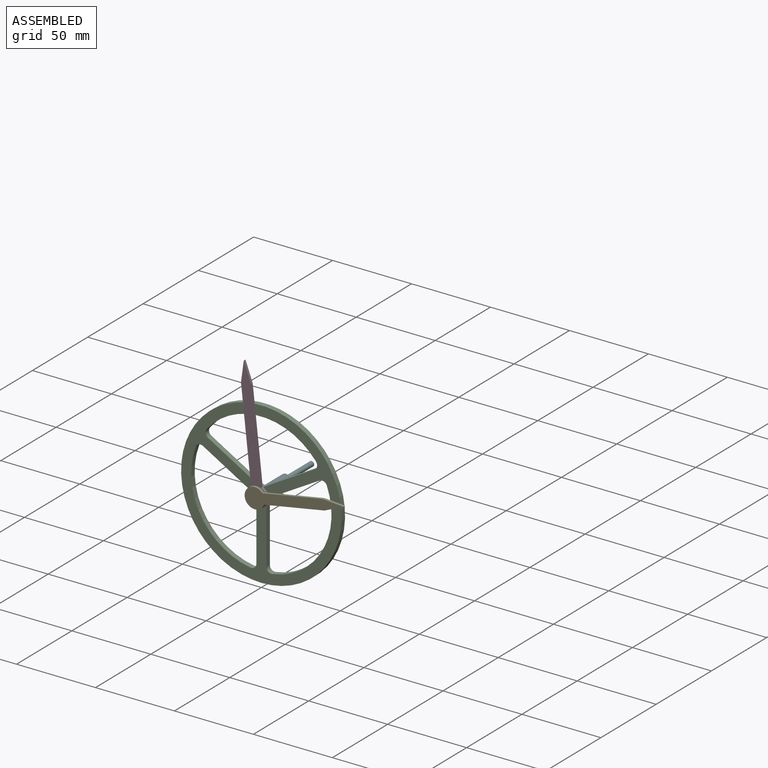
[diagram: assembled view]
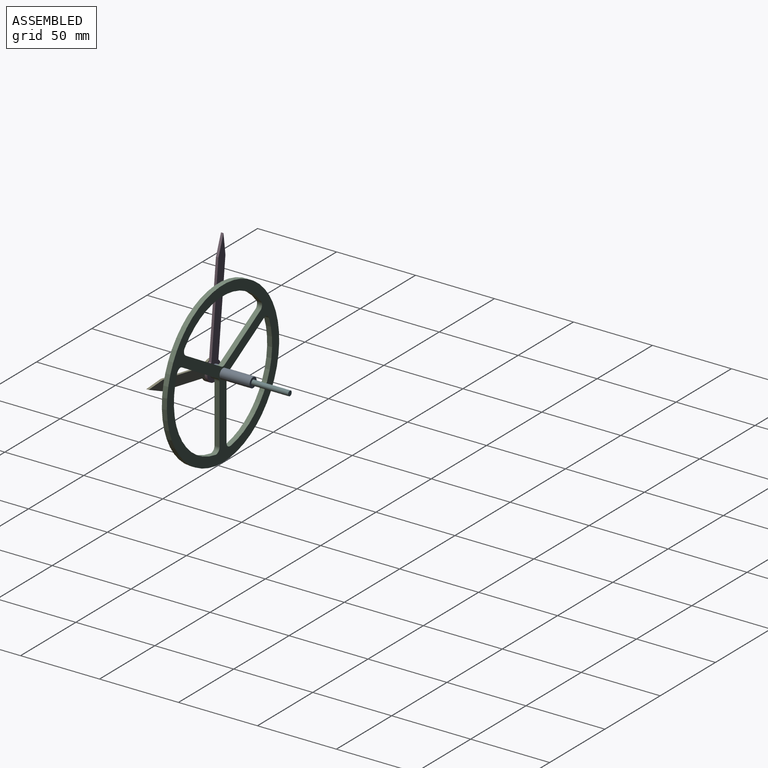
[diagram: assembled view, second angle]
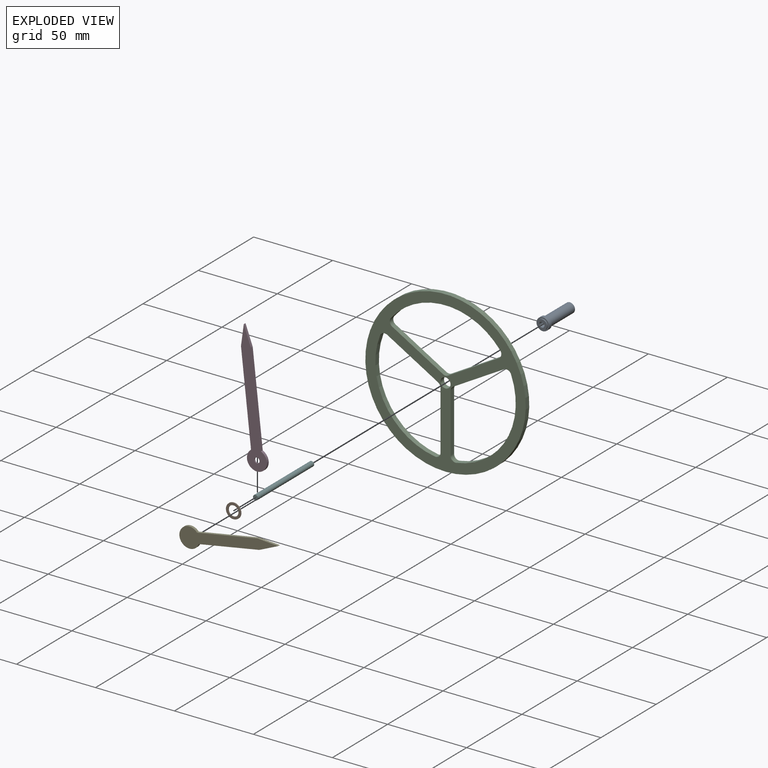
[diagram: exploded view]
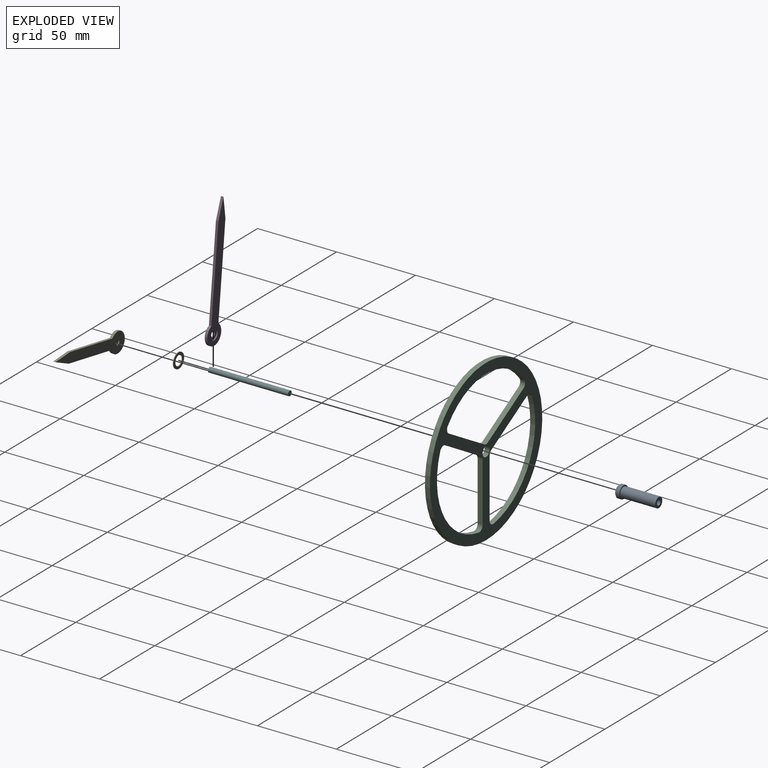
[diagram: exploded view, second angle]
ASSEMBLY  parts=6 mates=6
PART A: 8 faces, bbox 7.9x25.4x7.9 mm
  f0: plane 6.35x6.35mm, normal (0,-1,0), area 23.1mm2, adj f3,f6
  f1: cylinder r=3.97mm len=7.94mm, axis (0,-1,0), area 59.4mm2, adj f5,f7
  f2: cylinder r=3.17mm len=22.23mm, axis (0,-1,0), area 443.4mm2, adj f4,f5
  f3: cylinder r=1.65mm len=25.4mm, axis (0,-1,0), area 263.5mm2, adj f0,f4
  f4: plane 6.35x6.35mm, normal (0,1,0), area 23.1mm2, adj f2,f3
  f5: plane 7.94x7.94mm, normal (0,1,0), area 17.8mm2, adj f1,f2
  f6: cylinder r=3.17mm len=6.35mm, axis (0,-1,0), area 15.8mm2, adj f0,f7
  f7: plane 7.94x7.94mm, normal (0,-1,0), area 17.8mm2, adj f1,f6
PART B: 4 faces, bbox 9.5x0.5x9.5 mm
  f0: cylinder r=4.74mm len=9.47mm, axis (0,-1,0), area 15.1mm2, adj f1,f2
  f1: plane 9.47x9.47mm, normal (0,1,0), area 38.1mm2, adj f0,f3
  f2: plane 9.47x9.47mm, normal (0,-1,0), area 38.1mm2, adj f0,f3
  f3: cylinder r=3.21mm len=6.43mm, axis (0,1,0), area 10.3mm2, adj f1,f2
PART C: 22 faces, bbox 101.6x3.2x101.6 mm
  f0: cylinder r=3.17mm len=3.18mm, axis (0,1,0), area 10.6mm2, adj f1,f19,f20,f21
  f1: plane 32.14x18.56mm, normal (0.5,0,-0.87), area 117.8mm2, adj f0,f2,f20,f21
  f2: cylinder r=3.17mm len=4.55mm, axis (0,1,0), area 17.4mm2, adj f1,f3,f20,f21
  f3: cylinder r=44.45mm len=59.96mm, axis (0,1,0), area 252mm2, adj f2,f4,f20,f21
  f4: cylinder r=3.17mm len=3.66mm, axis (0,1,0), area 17.4mm2, adj f3,f19,f20,f21
  f5: cylinder r=3.17mm len=3.66mm, axis (0,1,0), area 17.4mm2, adj f6,f15,f20,f21
  f6: cylinder r=44.45mm len=59.96mm, axis (0,1,0), area 252mm2, adj f5,f7,f20,f21
  f7: cylinder r=3.17mm len=4.55mm, axis (0,1,0), area 17.4mm2, adj f6,f8,f20,f21
  f8: plane 32.14x18.56mm, normal (-0.5,0,-0.87), area 117.8mm2, adj f7,f9,f20,f21
  f9: cylinder r=3.17mm len=3.18mm, axis (0,1,0), area 10.6mm2, adj f8,f15,f20,f21
  f10: plane 32.14x18.56mm, normal (0.5,0,0.87), area 117.8mm2, adj f11,f18,f20,f21
  f11: cylinder r=3.17mm len=4.74mm, axis (0,1,0), area 17.4mm2, adj f10,f12,f20,f21
  f12: cylinder r=44.45mm len=69.23mm, axis (0,1,0), area 252mm2, adj f11,f13,f20,f21
  f13: cylinder r=3.17mm len=4.74mm, axis (0,1,0), area 17.4mm2, adj f12,f14,f20,f21
  f14: plane 32.14x18.56mm, normal (-0.5,0,0.87), area 117.8mm2, adj f13,f18,f20,f21
  f15: plane 37.12x3.18mm, normal (-1,0,0), area 117.8mm2, adj f5,f9,f20,f21
  f16: cylinder r=50.8mm len=101.6mm, axis (0,1,0), area 1013.4mm2, adj f20,f21
  f17: cylinder r=3.17mm len=6.35mm, axis (0,1,0), area 63.3mm2, adj f20,f21
  f18: cylinder r=3.17mm len=3.18mm, axis (0,1,0), area 10.6mm2, adj f10,f14,f20,f21
  f19: plane 37.12x3.18mm, normal (1,0,0), area 117.8mm2, adj f0,f4,f20,f21
  f20: plane 101.6x101.6mm, normal (0,-1,0), area 2716mm2, adj f0,f1,f2,f3,f4,f5,f6,f7
  f21: plane 101.6x101.6mm, normal (0,1,0), area 2716mm2, adj f0,f1,f2,f3,f4,f5,f6,f7
PART D: 10 faces, bbox 12.7x1.6x82.6 mm
  f0: cylinder r=1.65mm len=3.3mm, axis (0,1,0), area 8.2mm2, adj f6,f8
  f1: cylinder r=6.35mm len=12.7mm, axis (0,1,0), area 52.8mm2, adj f2,f5,f6,f7
  f2: plane 58x1.59mm, normal (1,0,0), area 92.1mm2, adj f1,f3,f6,f7
  f3: plane 12.7x3.18mm, normal (0.97,0,0.24), area 20.8mm2, adj f2,f4,f6,f7
  f4: plane 12.7x3.18mm, normal (-0.97,0,0.24), area 20.8mm2, adj f3,f5,f6,f7
  f5: plane 58x1.59mm, normal (-1,0,0), area 92.1mm2, adj f1,f4,f6,f7
  f6: plane 82.55x12.7mm, normal (0,-1,0), area 523.1mm2, adj f0,f1,f2,f3,f4,f5
  f7: plane 82.55x12.7mm, normal (0,1,0), area 500mm2, adj f1,f2,f3,f4,f5,f9
  f8: plane 6.35x6.35mm, normal (0,1,0), area 23.1mm2, adj f0,f9
  f9: cylinder r=3.17mm len=6.35mm, axis (0,1,0), area 15.8mm2, adj f7,f8
PART E: 9 faces, bbox 12.7x1.6x63.5 mm
  f0: cylinder r=6.35mm len=12.7mm, axis (0,1,0), area 52.8mm2, adj f1,f4,f5,f6
  f1: plane 38.95x1.59mm, normal (1,0,0), area 61.8mm2, adj f0,f2,f5,f6
  f2: plane 12.7x3.18mm, normal (0.97,0,0.24), area 20.8mm2, adj f1,f3,f5,f6
  f3: plane 12.7x3.18mm, normal (-0.97,0,0.24), area 20.8mm2, adj f2,f4,f5,f6
  f4: plane 38.95x1.59mm, normal (-1,0,0), area 61.8mm2, adj f0,f3,f5,f6
  f5: plane 63.5x12.7mm, normal (0,-1,0), area 410.7mm2, adj f0,f1,f2,f3,f4
  f6: plane 63.5x12.7mm, normal (0,1,0), area 402.8mm2, adj f0,f1,f2,f3,f4,f7
  f7: cylinder r=1.59mm len=3.18mm, axis (0,1,0), area 7.9mm2, adj f6,f8
  f8: plane 3.18x3.18mm, normal (0,1,0), area 7.9mm2, adj f7
PART F: 3 faces, bbox 3.2x50.8x3.2 mm
  f0: cylinder r=1.59mm len=50.8mm, axis (0,-1,0), area 506.7mm2, adj f1,f2
  f1: plane 3.18x3.18mm, normal (0,1,0), area 7.9mm2, adj f0
  f2: plane 3.18x3.18mm, normal (0,-1,0), area 7.9mm2, adj f0
PLACE A rot(axis=(0,-1,0),6.3deg) t=(0,-3.18,0)mm
PLACE B rot(axis=(0,-1,0),6.3deg) t=(0,-4.48,0)mm
PLACE C t=(0,3.18,0)mm
PLACE D rot(axis=(0,-1,0),6.3deg) t=(0,-2.38,0)mm
PLACE E rot(axis=(0,1,0),79.8deg) t=(0,-4.48,0)mm
PLACE F rot(axis=(0,1,0),79.8deg) t=(0,-5.27,0)mm
MATE revolute A.f2 <-> C.f3  axis (0,-1,0) through (0,0,0)mm
MATE fastened E.f7 <-> F.f0  axis (0,1,0) through (0,-5.27,0)mm
MATE fastened D.f0 <-> A.f1  axis (0,1,0) through (0,-3.18,0)mm
MATE cylindrical D.f1 <-> E.f0  axis (0,1,0) through (0,-2.38,0)mm
MATE revolute E.f0 <-> B.f0  axis (0,1,0) through (0,-4.48,0)mm
MATE fastened D.f1 <-> B.f0  axis (0,-1,0) through (0,-3.97,0)mm
